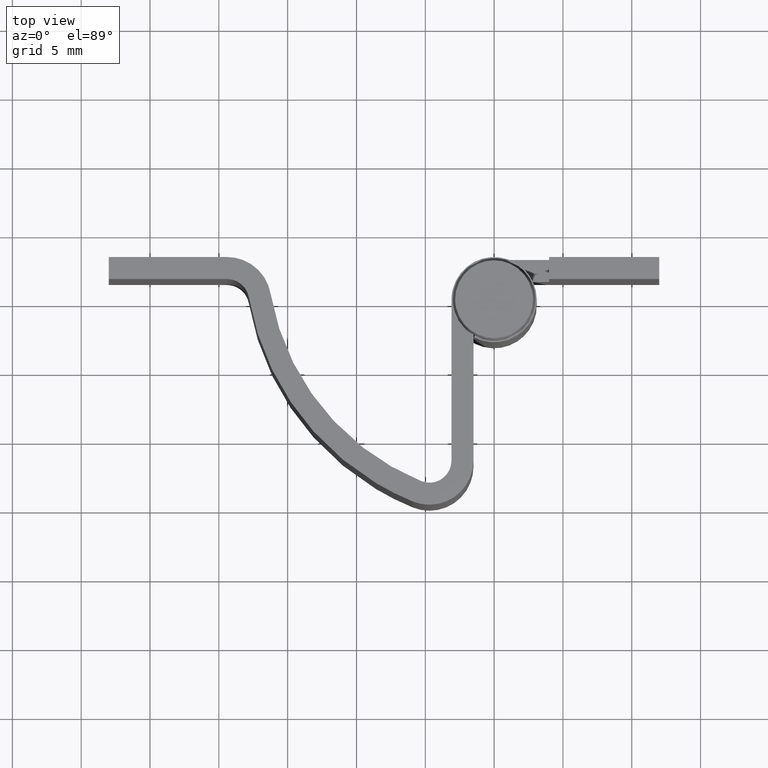
[diagram: clean part render]
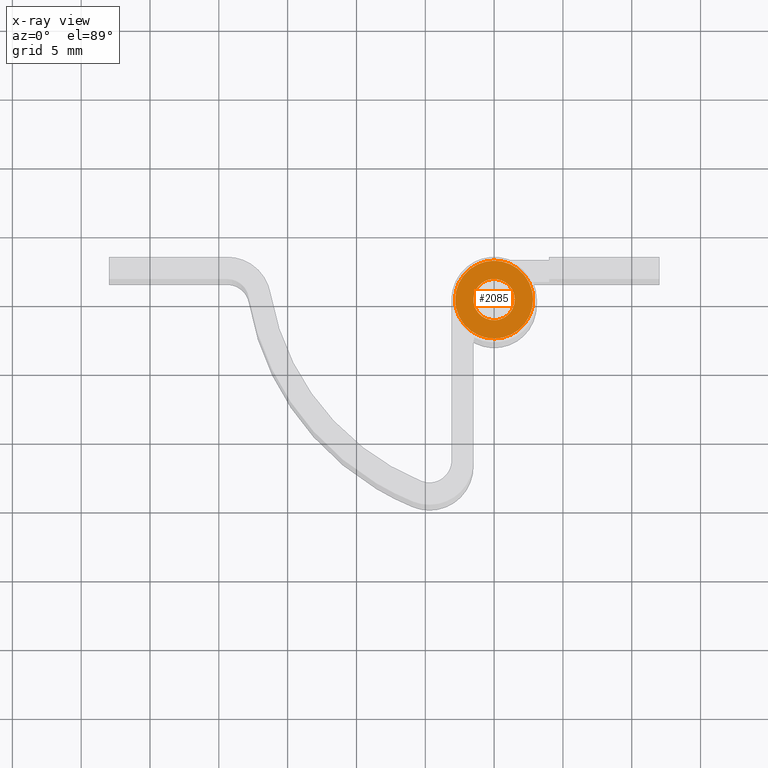
[diagram: x-ray — body ghosted, one internal face saturated and labeled with its STEP entity id]
A machine part, top view, then the same camera in x-ray: the body is ghosted and one INTERNAL B-rep face — a face not visible from any outside direction — is saturated and labeled: STEP entity #2085.
In plain terms, the highlighted face is a freeform B-spline surface patch.
Its self-contained STEP definition (entity closure, byte-faithful):
#1803=CARTESIAN_POINT('',(-0.177051351994343,1.489514289544405,28.000008000000001));
#1804=VERTEX_POINT('',#1803);
#1810=CARTESIAN_POINT('',(1.500000000000000,0.0,28.000008000000001));
#1811=VERTEX_POINT('',#1810);
#1812=CARTESIAN_POINT('',(-0.177051351994343,1.489514289544406,28.000008000000005));
#1813=CARTESIAN_POINT('',(-0.088836179487168,1.500000000000000,28.000008000000001));
#1814=CARTESIAN_POINT('',(0.0,1.500000000000000,28.000008000000001));
#1815=CARTESIAN_POINT('',(1.500000000000000,1.500000000000000,28.000007999999998));
#1816=CARTESIAN_POINT('',(1.500000000000000,0.0,28.000008000000001));
#1824=(BOUNDED_CURVE()B_SPLINE_CURVE(2,(#1812,#1813,#1814,#1815,#1816),.UNSPECIFIED.,.F.,.U.)B_SPLINE_CURVE_WITH_KNOTS((3,2,3),(0.229562473513555,0.250000000000000,0.500000000000000),.UNSPECIFIED.)CURVE()GEOMETRIC_REPRESENTATION_ITEM()RATIONAL_B_SPLINE_CURVE((0.956026754183791,0.976055948331200,1.0,0.707106781186548,1.0))REPRESENTATION_ITEM(''));
#1825=EDGE_CURVE('',#1804,#1811,#1824,.T.);
#1827=CARTESIAN_POINT('',(0.091572809346892,-1.497202197630072,28.000008000000008));
#1828=VERTEX_POINT('',#1827);
#1829=CARTESIAN_POINT('',(1.500000000000000,0.0,28.000008000000001));
#1830=CARTESIAN_POINT('',(1.500000000000001,-1.411059100274302,28.000008000000008));
#1831=CARTESIAN_POINT('',(0.091572809346892,-1.497202197630073,28.000008000000005));
#1839=(BOUNDED_CURVE()B_SPLINE_CURVE(2,(#1829,#1830,#1831),.UNSPECIFIED.,.F.,.U.)B_SPLINE_CURVE_WITH_KNOTS((3,3),(0.500000000000000,0.739332962231686),.UNSPECIFIED.)CURVE()GEOMETRIC_REPRESENTATION_ITEM()RATIONAL_B_SPLINE_CURVE((1.0,0.719603993295212,0.976072041651166))REPRESENTATION_ITEM(''));
#1840=EDGE_CURVE('',#1811,#1828,#1839,.T.);
#1914=CARTESIAN_POINT('',(-1.500000000000000,0.0,28.000008000000001));
#1915=VERTEX_POINT('',#1914);
#1916=CARTESIAN_POINT('',(0.091572809346892,-1.497202197630072,28.000008000000001));
#1917=CARTESIAN_POINT('',(0.045829144992615,-1.500000000000000,28.000007999999998));
#1918=CARTESIAN_POINT('',(0.0,-1.500000000000000,28.000008000000001));
#1919=CARTESIAN_POINT('',(-1.500000000000000,-1.500000000000000,28.000007999999998));
#1920=CARTESIAN_POINT('',(-1.500000000000000,0.0,28.000008000000001));
#1928=(BOUNDED_CURVE()B_SPLINE_CURVE(2,(#1916,#1917,#1918,#1919,#1920),.UNSPECIFIED.,.F.,.U.)B_SPLINE_CURVE_WITH_KNOTS((3,2,3),(0.739332962231687,0.750000000000000,1.0),.UNSPECIFIED.)CURVE()GEOMETRIC_REPRESENTATION_ITEM()RATIONAL_B_SPLINE_CURVE((0.976072041651167,0.987502787891336,1.0,0.707106781186548,1.0))REPRESENTATION_ITEM(''));
#1929=EDGE_CURVE('',#1828,#1915,#1928,.T.);
#1931=CARTESIAN_POINT('',(-1.500000000000000,0.0,28.000008000000001));
#1932=CARTESIAN_POINT('',(-1.500000000000000,1.332261788910468,28.000008000000005));
#1933=CARTESIAN_POINT('',(-0.177051351994343,1.489514289544406,28.000008000000005));
#1941=(BOUNDED_CURVE()B_SPLINE_CURVE(2,(#1931,#1932,#1933),.UNSPECIFIED.,.F.,.U.)B_SPLINE_CURVE_WITH_KNOTS((3,3),(0.0,0.229562473513555),.UNSPECIFIED.)CURVE()GEOMETRIC_REPRESENTATION_ITEM()RATIONAL_B_SPLINE_CURVE((1.0,0.731050832855348,0.956026754183791))REPRESENTATION_ITEM(''));
#1942=EDGE_CURVE('',#1915,#1804,#1941,.T.);
#2038=CARTESIAN_POINT('',(-3.110986930441753,-3.110986930441707,28.000008000000001));
#2039=CARTESIAN_POINT('',(3.110987132746625,-3.110986930441707,28.000008000000001));
#2040=CARTESIAN_POINT('',(-3.110986930441753,3.110987132746579,28.000008000000001));
#2041=CARTESIAN_POINT('',(3.110987132746625,3.110987132746579,28.000008000000001));
#2042=B_SPLINE_SURFACE_WITH_KNOTS('',1,1,((#2038,#2040),(#2039,#2041)),.UNSPECIFIED.,.F.,.F.,.U.,(2,2),(2,2),(0.0,6.221974063188378),(0.0,6.221974063188286),.UNSPECIFIED.);
#2043=CARTESIAN_POINT('',(-2.828427124746190,0.0,28.000008000000001));
#2044=VERTEX_POINT('',#2043);
#2045=CARTESIAN_POINT('',(2.828427124746190,0.0,28.000008000000001));
#2046=VERTEX_POINT('',#2045);
#2047=CARTESIAN_POINT('',(-2.828427124746190,0.0,28.000008000000001));
#2048=CARTESIAN_POINT('',(-2.828427124746189,2.828427124746189,28.000008000000001));
#2049=CARTESIAN_POINT('',(0.0,2.828427124746190,28.000008000000001));
#2050=CARTESIAN_POINT('',(2.828427124746189,2.828427124746189,28.000008000000001));
#2051=CARTESIAN_POINT('',(2.828427124746190,0.0,28.000008000000001));
#2059=(BOUNDED_CURVE()B_SPLINE_CURVE(2,(#2047,#2048,#2049,#2050,#2051),.UNSPECIFIED.,.F.,.U.)B_SPLINE_CURVE_WITH_KNOTS((3,2,3),(0.0,0.250000000000000,0.500000000000000),.UNSPECIFIED.)CURVE()GEOMETRIC_REPRESENTATION_ITEM()RATIONAL_B_SPLINE_CURVE((1.0,0.707106781186547,1.0,0.707106781186547,1.0))REPRESENTATION_ITEM(''));
#2060=EDGE_CURVE('',#2044,#2046,#2059,.T.);
#2061=ORIENTED_EDGE('',*,*,#2060,.T.);
#2062=CARTESIAN_POINT('',(2.828427124746190,0.0,28.000008000000001));
#2063=CARTESIAN_POINT('',(2.828427124746189,-2.828427124746189,28.000008000000001));
#2064=CARTESIAN_POINT('',(0.0,-2.828427124746190,28.000008000000001));
#2065=CARTESIAN_POINT('',(-2.828427124746189,-2.828427124746189,28.000008000000001));
#2066=CARTESIAN_POINT('',(-2.828427124746190,0.0,28.000008000000001));
#2074=(BOUNDED_CURVE()B_SPLINE_CURVE(2,(#2062,#2063,#2064,#2065,#2066),.UNSPECIFIED.,.F.,.U.)B_SPLINE_CURVE_WITH_KNOTS((3,2,3),(0.500000000000000,0.750000000000000,1.0),.UNSPECIFIED.)CURVE()GEOMETRIC_REPRESENTATION_ITEM()RATIONAL_B_SPLINE_CURVE((1.0,0.707106781186547,1.0,0.707106781186547,1.0))REPRESENTATION_ITEM(''));
#2075=EDGE_CURVE('',#2046,#2044,#2074,.T.);
#2076=ORIENTED_EDGE('',*,*,#2075,.T.);
#2077=EDGE_LOOP('',(#2061,#2076));
#2078=FACE_OUTER_BOUND('',#2077,.T.);
#2079=ORIENTED_EDGE('',*,*,#1840,.F.);
#2080=ORIENTED_EDGE('',*,*,#1825,.F.);
#2081=ORIENTED_EDGE('',*,*,#1942,.F.);
#2082=ORIENTED_EDGE('',*,*,#1929,.F.);
#2083=EDGE_LOOP('',(#2079,#2080,#2081,#2082));
#2084=FACE_BOUND('',#2083,.T.);
#2085=ADVANCED_FACE('',(#2078,#2084),#2042,.F.);